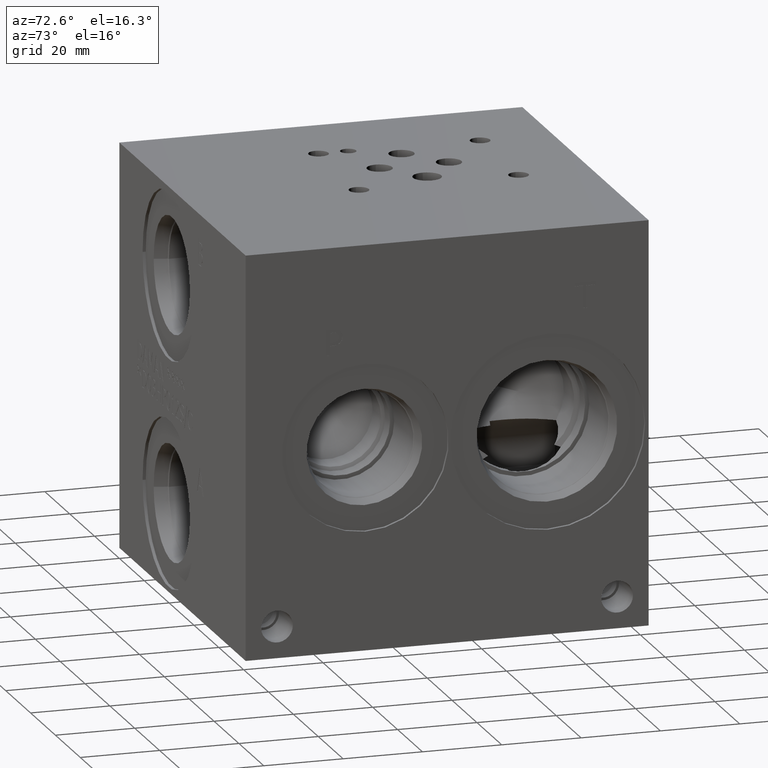
[diagram: clean part render]
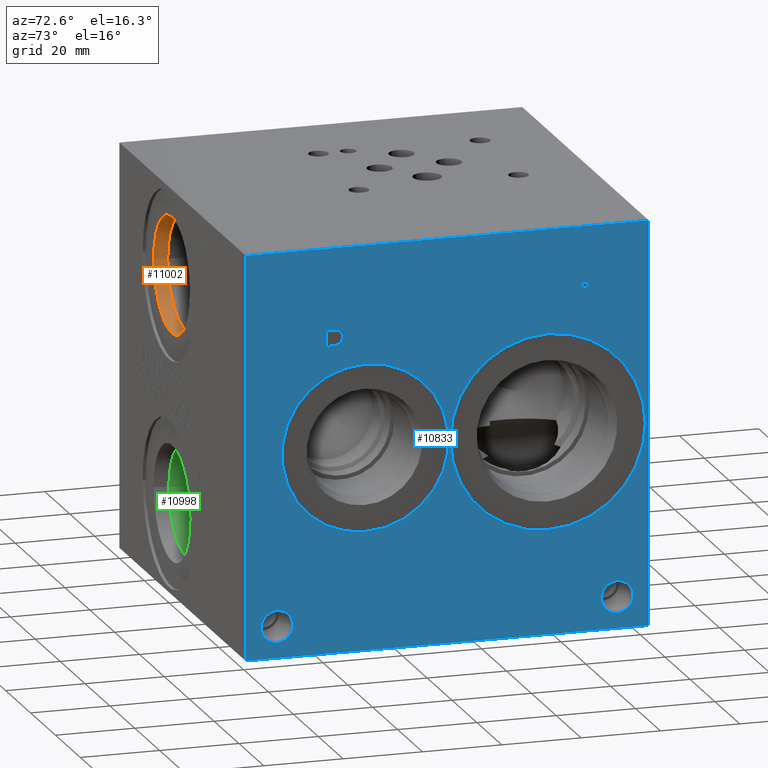
[diagram: same view with three faces highlighted in distinct colors, each labeled with its STEP entity id]
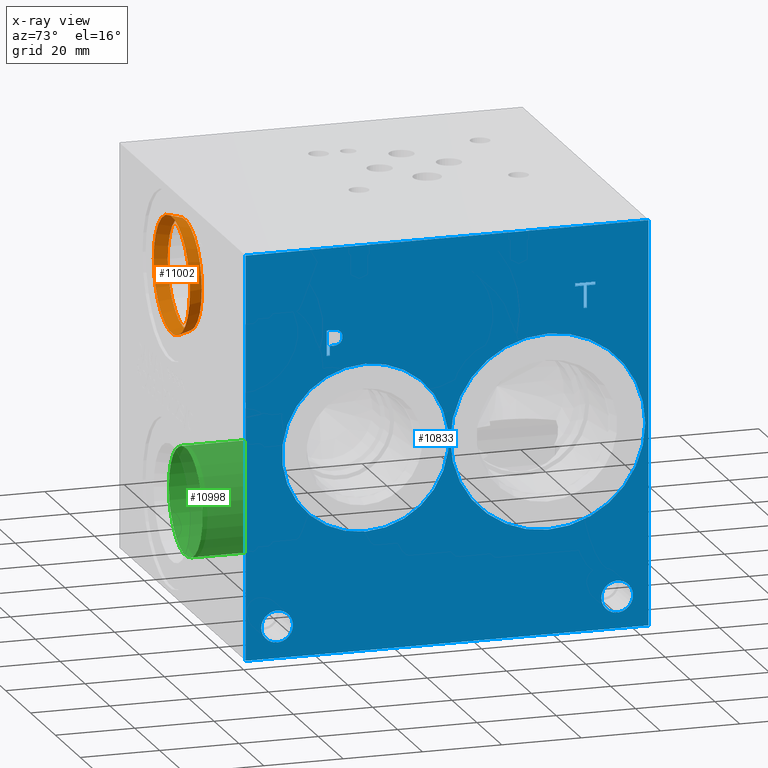
[diagram: x-ray of the same camera — body ghosted, the three highlighted faces saturated]
A machine part, auxiliary view with three faces highlighted in distinct colors.
The next image is the same camera in x-ray (body ghosted, the three faces saturated) — at least one of them is partly hidden behind the body in this view.
Their STEP definitions:

[orange] entity #11002 — the highlighted conical surface has half-angle 15 deg.
#46=CONICAL_SURFACE('',#11606,14.15415,0.261799389532319);
#280=CIRCLE('',#11604,14.5923);
#281=CIRCLE('',#11605,14.5923);
#282=CIRCLE('',#11607,13.716);
#283=CIRCLE('',#11608,13.716);
#1373=FACE_OUTER_BOUND('',#2002,.T.);
#2002=EDGE_LOOP('',(#9534,#9535,#9536,#9537,#9538,#9539));
#3043=LINE('',#18863,#4062);
#4062=VECTOR('',#13799,14.15415);
#5073=VERTEX_POINT('',#18857);
#5074=VERTEX_POINT('',#18858);
#5075=VERTEX_POINT('',#18862);
#5076=VERTEX_POINT('',#18864);
#6585=EDGE_CURVE('',#5073,#5074,#280,.T.);
#6586=EDGE_CURVE('',#5074,#5073,#281,.T.);
#6587=EDGE_CURVE('',#5074,#5075,#3043,.T.);
#6588=EDGE_CURVE('',#5075,#5076,#282,.T.);
#6589=EDGE_CURVE('',#5076,#5075,#283,.T.);
#9534=ORIENTED_EDGE('',*,*,#6585,.F.);
#9535=ORIENTED_EDGE('',*,*,#6586,.F.);
#9536=ORIENTED_EDGE('',*,*,#6587,.T.);
#9537=ORIENTED_EDGE('',*,*,#6588,.T.);
#9538=ORIENTED_EDGE('',*,*,#6589,.T.);
#9539=ORIENTED_EDGE('',*,*,#6587,.F.);
#11002=ADVANCED_FACE('',(#1373),#46,.F.);
#11604=AXIS2_PLACEMENT_3D('',#18859,#13793,#13794);
#11605=AXIS2_PLACEMENT_3D('',#18860,#13795,#13796);
#11606=AXIS2_PLACEMENT_3D('',#18861,#13797,#13798);
#11607=AXIS2_PLACEMENT_3D('',#18865,#13800,#13801);
#11608=AXIS2_PLACEMENT_3D('',#18866,#13802,#13803);
#13793=DIRECTION('center_axis',(0.,1.,0.));
#13794=DIRECTION('ref_axis',(1.,0.,0.));
#13795=DIRECTION('center_axis',(0.,1.,0.));
#13796=DIRECTION('ref_axis',(1.,0.,0.));
#13797=DIRECTION('center_axis',(0.,-1.,0.));
#13798=DIRECTION('ref_axis',(1.,0.,0.));
#13799=DIRECTION('',(0.258819046776634,0.965925825840491,-3.16961917193374E-17));
#13800=DIRECTION('center_axis',(0.,1.,0.));
#13801=DIRECTION('ref_axis',(1.,0.,0.));
#13802=DIRECTION('center_axis',(0.,1.,0.));
#13803=DIRECTION('ref_axis',(1.,0.,0.));
#18857=CARTESIAN_POINT('',(54.2671,0.7874,79.375));
#18858=CARTESIAN_POINT('',(25.0825,0.787399999999999,79.375));
#18859=CARTESIAN_POINT('Origin',(39.6748,0.7874,79.375));
#18860=CARTESIAN_POINT('Origin',(39.6748,0.7874,79.375));
#18861=CARTESIAN_POINT('Origin',(39.6748,2.42259805,79.375));
#18862=CARTESIAN_POINT('',(25.9588,4.0577961,79.375));
#18863=CARTESIAN_POINT('',(25.52065,2.42259805,79.375));
#18864=CARTESIAN_POINT('',(53.3908,4.0577961,79.375));
#18865=CARTESIAN_POINT('Origin',(39.6748,4.0577961,79.375));
#18866=CARTESIAN_POINT('Origin',(39.6748,4.0577961,79.375));

[blue] entity #10833 — the highlighted planar face has unit normal (1, 0, 0).
#118=CIRCLE('',#11296,24.5618);
#119=CIRCLE('',#11297,24.5618);
#120=CIRCLE('',#11298,21.0185);
#121=CIRCLE('',#11299,21.0185);
#122=CIRCLE('',#11300,4.0005);
#123=CIRCLE('',#11301,4.0005);
#124=CIRCLE('',#11302,4.0005);
#125=CIRCLE('',#11303,4.0005);
#367=FACE_BOUND('',#1801,.T.);
#368=FACE_BOUND('',#1802,.T.);
#369=FACE_BOUND('',#1803,.T.);
#370=FACE_BOUND('',#1804,.T.);
#371=FACE_BOUND('',#1805,.T.);
#372=FACE_BOUND('',#1806,.T.);
#650=B_SPLINE_CURVE_WITH_KNOTS('',2,(#17528,#17529,#17530,#17531),
 .UNSPECIFIED.,.F.,.F.,(3,1,3),(0.,1.,2.),.UNSPECIFIED.);
#652=B_SPLINE_CURVE_WITH_KNOTS('',2,(#17549,#17550,#17551,#17552),
 .UNSPECIFIED.,.F.,.F.,(3,1,3),(0.,1.,2.),.UNSPECIFIED.);
#654=B_SPLINE_CURVE_WITH_KNOTS('',2,(#17598,#17599,#17600,#17601),
 .UNSPECIFIED.,.F.,.F.,(3,1,3),(0.,1.,2.),.UNSPECIFIED.);
#656=B_SPLINE_CURVE_WITH_KNOTS('',2,(#17616,#17617,#17618,#17619),
 .UNSPECIFIED.,.F.,.F.,(3,1,3),(0.,1.,2.),.UNSPECIFIED.);
#1204=FACE_OUTER_BOUND('',#1800,.T.);
#1800=EDGE_LOOP('',(#8653,#8654,#8655,#8656));
#1801=EDGE_LOOP('',(#8657,#8658));
#1802=EDGE_LOOP('',(#8659,#8660));
#1803=EDGE_LOOP('',(#8661,#8662));
#1804=EDGE_LOOP('',(#8663,#8664));
#1805=EDGE_LOOP('',(#8665,#8666,#8667,#8668,#8669,#8670,#8671,#8672));
#1806=EDGE_LOOP('',(#8673,#8674,#8675,#8676,#8677,#8678,#8679,#8680,#8681));
#2395=LINE('',#16453,#3414);
#2803=LINE('',#17561,#3822);
#2806=LINE('',#17567,#3825);
#2809=LINE('',#17573,#3828);
#2812=LINE('',#17579,#3831);
#2815=LINE('',#17585,#3834);
#2819=LINE('',#17627,#3838);
#2820=LINE('',#17629,#3839);
#2821=LINE('',#17630,#3840);
#2822=LINE('',#17649,#3841);
#2823=LINE('',#17651,#3842);
#2824=LINE('',#17653,#3843);
#2825=LINE('',#17655,#3844);
#2826=LINE('',#17657,#3845);
#2827=LINE('',#17659,#3846);
#2828=LINE('',#17661,#3847);
#2829=LINE('',#17662,#3848);
#3414=VECTOR('',#12225,10.);
#3822=VECTOR('',#12925,10.);
#3825=VECTOR('',#12930,10.);
#3828=VECTOR('',#12935,10.);
#3831=VECTOR('',#12940,10.);
#3834=VECTOR('',#12945,10.);
#3838=VECTOR('',#12953,10.);
#3839=VECTOR('',#12954,10.);
#3840=VECTOR('',#12955,10.);
#3841=VECTOR('',#12972,10.);
#3842=VECTOR('',#12973,10.);
#3843=VECTOR('',#12974,10.);
#3844=VECTOR('',#12975,10.);
#3845=VECTOR('',#12976,10.);
#3846=VECTOR('',#12977,10.);
#3847=VECTOR('',#12978,10.);
#3848=VECTOR('',#12979,10.);
#4456=VERTEX_POINT('',#16450);
#4457=VERTEX_POINT('',#16452);
#4757=VERTEX_POINT('',#17526);
#4758=VERTEX_POINT('',#17527);
#4761=VERTEX_POINT('',#17548);
#4763=VERTEX_POINT('',#17560);
#4765=VERTEX_POINT('',#17566);
#4767=VERTEX_POINT('',#17572);
#4769=VERTEX_POINT('',#17578);
#4771=VERTEX_POINT('',#17584);
#4773=VERTEX_POINT('',#17597);
#4775=VERTEX_POINT('',#17626);
#4776=VERTEX_POINT('',#17628);
#4777=VERTEX_POINT('',#17631);
#4778=VERTEX_POINT('',#17632);
#4779=VERTEX_POINT('',#17635);
#4780=VERTEX_POINT('',#17636);
#4781=VERTEX_POINT('',#17639);
#4782=VERTEX_POINT('',#17640);
#4783=VERTEX_POINT('',#17643);
#4784=VERTEX_POINT('',#17644);
#4785=VERTEX_POINT('',#17647);
#4786=VERTEX_POINT('',#17648);
#4787=VERTEX_POINT('',#17650);
#4788=VERTEX_POINT('',#17652);
#4789=VERTEX_POINT('',#17654);
#4790=VERTEX_POINT('',#17656);
#4791=VERTEX_POINT('',#17658);
#4792=VERTEX_POINT('',#17660);
#5686=EDGE_CURVE('',#4456,#4457,#2395,.T.);
#6125=EDGE_CURVE('',#4757,#4758,#650,.T.);
#6129=EDGE_CURVE('',#4761,#4757,#652,.T.);
#6132=EDGE_CURVE('',#4763,#4761,#2803,.T.);
#6135=EDGE_CURVE('',#4765,#4763,#2806,.T.);
#6138=EDGE_CURVE('',#4767,#4765,#2809,.T.);
#6141=EDGE_CURVE('',#4769,#4767,#2812,.T.);
#6144=EDGE_CURVE('',#4771,#4769,#2815,.T.);
#6147=EDGE_CURVE('',#4773,#4771,#654,.T.);
#6150=EDGE_CURVE('',#4758,#4773,#656,.T.);
#6152=EDGE_CURVE('',#4456,#4775,#2819,.T.);
#6153=EDGE_CURVE('',#4775,#4776,#2820,.T.);
#6154=EDGE_CURVE('',#4457,#4776,#2821,.T.);
#6155=EDGE_CURVE('',#4777,#4778,#118,.T.);
#6156=EDGE_CURVE('',#4778,#4777,#119,.T.);
#6157=EDGE_CURVE('',#4779,#4780,#120,.T.);
#6158=EDGE_CURVE('',#4780,#4779,#121,.T.);
#6159=EDGE_CURVE('',#4781,#4782,#122,.T.);
#6160=EDGE_CURVE('',#4782,#4781,#123,.T.);
#6161=EDGE_CURVE('',#4783,#4784,#124,.T.);
#6162=EDGE_CURVE('',#4784,#4783,#125,.T.);
#6163=EDGE_CURVE('',#4785,#4786,#2822,.T.);
#6164=EDGE_CURVE('',#4786,#4787,#2823,.T.);
#6165=EDGE_CURVE('',#4787,#4788,#2824,.T.);
#6166=EDGE_CURVE('',#4788,#4789,#2825,.T.);
#6167=EDGE_CURVE('',#4789,#4790,#2826,.T.);
#6168=EDGE_CURVE('',#4790,#4791,#2827,.T.);
#6169=EDGE_CURVE('',#4791,#4792,#2828,.T.);
#6170=EDGE_CURVE('',#4792,#4785,#2829,.T.);
#8653=ORIENTED_EDGE('',*,*,#6152,.T.);
#8654=ORIENTED_EDGE('',*,*,#6153,.T.);
#8655=ORIENTED_EDGE('',*,*,#6154,.F.);
#8656=ORIENTED_EDGE('',*,*,#5686,.F.);
#8657=ORIENTED_EDGE('',*,*,#6155,.T.);
#8658=ORIENTED_EDGE('',*,*,#6156,.T.);
#8659=ORIENTED_EDGE('',*,*,#6157,.T.);
#8660=ORIENTED_EDGE('',*,*,#6158,.T.);
#8661=ORIENTED_EDGE('',*,*,#6159,.T.);
#8662=ORIENTED_EDGE('',*,*,#6160,.T.);
#8663=ORIENTED_EDGE('',*,*,#6161,.T.);
#8664=ORIENTED_EDGE('',*,*,#6162,.T.);
#8665=ORIENTED_EDGE('',*,*,#6163,.T.);
#8666=ORIENTED_EDGE('',*,*,#6164,.T.);
#8667=ORIENTED_EDGE('',*,*,#6165,.T.);
#8668=ORIENTED_EDGE('',*,*,#6166,.T.);
#8669=ORIENTED_EDGE('',*,*,#6167,.T.);
#8670=ORIENTED_EDGE('',*,*,#6168,.T.);
#8671=ORIENTED_EDGE('',*,*,#6169,.T.);
#8672=ORIENTED_EDGE('',*,*,#6170,.T.);
#8673=ORIENTED_EDGE('',*,*,#6125,.T.);
#8674=ORIENTED_EDGE('',*,*,#6150,.T.);
#8675=ORIENTED_EDGE('',*,*,#6147,.T.);
#8676=ORIENTED_EDGE('',*,*,#6144,.T.);
#8677=ORIENTED_EDGE('',*,*,#6141,.T.);
#8678=ORIENTED_EDGE('',*,*,#6138,.T.);
#8679=ORIENTED_EDGE('',*,*,#6135,.T.);
#8680=ORIENTED_EDGE('',*,*,#6132,.T.);
#8681=ORIENTED_EDGE('',*,*,#6129,.T.);
#9966=PLANE('',#11295);
#10833=ADVANCED_FACE('',(#1204,#367,#368,#369,#370,#371,#372),#9966,.T.);
#11295=AXIS2_PLACEMENT_3D('',#17625,#12951,#12952);
#11296=AXIS2_PLACEMENT_3D('',#17633,#12956,#12957);
#11297=AXIS2_PLACEMENT_3D('',#17634,#12958,#12959);
#11298=AXIS2_PLACEMENT_3D('',#17637,#12960,#12961);
#11299=AXIS2_PLACEMENT_3D('',#17638,#12962,#12963);
#11300=AXIS2_PLACEMENT_3D('',#17641,#12964,#12965);
#11301=AXIS2_PLACEMENT_3D('',#17642,#12966,#12967);
#11302=AXIS2_PLACEMENT_3D('',#17645,#12968,#12969);
#11303=AXIS2_PLACEMENT_3D('',#17646,#12970,#12971);
#12225=DIRECTION('',(0.,0.,1.));
#12925=DIRECTION('',(0.,1.,0.));
#12930=DIRECTION('',(0.,0.,1.));
#12935=DIRECTION('',(0.,-1.,0.));
#12940=DIRECTION('',(0.,0.,-1.));
#12945=DIRECTION('',(0.,-1.,0.));
#12951=DIRECTION('center_axis',(1.,0.,0.));
#12952=DIRECTION('ref_axis',(0.,1.,0.));
#12953=DIRECTION('',(0.,1.,0.));
#12954=DIRECTION('',(0.,0.,1.));
#12955=DIRECTION('',(0.,1.,0.));
#12956=DIRECTION('center_axis',(-1.,0.,0.));
#12957=DIRECTION('ref_axis',(0.,0.,-1.));
#12958=DIRECTION('center_axis',(-1.,0.,0.));
#12959=DIRECTION('ref_axis',(0.,0.,-1.));
#12960=DIRECTION('center_axis',(-1.,0.,0.));
#12961=DIRECTION('ref_axis',(0.,0.,-1.));
#12962=DIRECTION('center_axis',(-1.,0.,0.));
#12963=DIRECTION('ref_axis',(0.,0.,-1.));
#12964=DIRECTION('center_axis',(-1.,0.,0.));
#12965=DIRECTION('ref_axis',(0.,1.,0.));
#12966=DIRECTION('center_axis',(-1.,0.,0.));
#12967=DIRECTION('ref_axis',(0.,1.,0.));
#12968=DIRECTION('center_axis',(-1.,0.,0.));
#12969=DIRECTION('ref_axis',(0.,1.,0.));
#12970=DIRECTION('center_axis',(-1.,0.,0.));
#12971=DIRECTION('ref_axis',(0.,1.,0.));
#12972=DIRECTION('',(0.,-1.,0.));
#12973=DIRECTION('',(0.,0.,1.));
#12974=DIRECTION('',(0.,-1.,0.));
#12975=DIRECTION('',(0.,0.,1.));
#12976=DIRECTION('',(0.,1.,0.));
#12977=DIRECTION('',(0.,0.,-1.));
#12978=DIRECTION('',(0.,-1.,0.));
#12979=DIRECTION('',(0.,0.,-1.));
#16450=CARTESIAN_POINT('',(101.6,0.,0.));
#16452=CARTESIAN_POINT('',(101.6,0.,101.6));
#16453=CARTESIAN_POINT('',(101.6,0.,0.));
#17526=CARTESIAN_POINT('',(101.6,23.6617672023594,80.6297681439707));
#17527=CARTESIAN_POINT('',(101.6,24.418209654532,79.111737372604));
#17528=CARTESIAN_POINT('Ctrl Pts',(101.6,23.6617672023594,80.6297681439707));
#17529=CARTESIAN_POINT('Ctrl Pts',(101.6,24.0168320268486,80.3879123939564));
#17530=CARTESIAN_POINT('Ctrl Pts',(101.6,24.418209654532,79.6417616758269));
#17531=CARTESIAN_POINT('Ctrl Pts',(101.6,24.418209654532,79.111737372604));
#17548=CARTESIAN_POINT('',(101.6,21.9996521543883,81.0259999046326));
#17549=CARTESIAN_POINT('Ctrl Pts',(101.6,21.9996521543883,81.0259999046326));
#17550=CARTESIAN_POINT('Ctrl Pts',(101.6,22.5656975267624,81.0259999046326));
#17551=CARTESIAN_POINT('Ctrl Pts',(101.6,23.358161048086,80.8407486918556));
#17552=CARTESIAN_POINT('Ctrl Pts',(101.6,23.6617672023594,80.6297681439707));
#17560=CARTESIAN_POINT('',(101.6,20.4044333776978,81.0259999046326));
#17561=CARTESIAN_POINT('',(101.6,10.2022166888489,81.0259999046326));
#17566=CARTESIAN_POINT('',(101.6,20.4044333776978,74.676));
#17567=CARTESIAN_POINT('',(101.6,20.4044333776978,37.338));
#17572=CARTESIAN_POINT('',(101.6,21.2483555692373,74.676));
#17573=CARTESIAN_POINT('',(101.6,10.6241777846186,74.676));
#17578=CARTESIAN_POINT('',(101.6,21.2483555692373,77.0430988299279));
#17579=CARTESIAN_POINT('',(101.6,21.2483555692373,38.5215494149639));
#17584=CARTESIAN_POINT('',(101.6,21.9636310852372,77.0430988299279));
#17585=CARTESIAN_POINT('',(101.6,10.9818155426186,77.0430988299279));
#17597=CARTESIAN_POINT('',(101.6,23.8624560162011,77.7017698086904));
#17598=CARTESIAN_POINT('Ctrl Pts',(101.6,23.8624560162011,77.7017698086904));
#17599=CARTESIAN_POINT('Ctrl Pts',(101.6,23.5331205268198,77.3775801863307));
#17600=CARTESIAN_POINT('Ctrl Pts',(101.6,22.6428855320861,77.0430988299279));
#17601=CARTESIAN_POINT('Ctrl Pts',(101.6,21.9636310852372,77.0430988299279));
#17616=CARTESIAN_POINT('Ctrl Pts',(101.6,24.418209654532,79.111737372604));
#17617=CARTESIAN_POINT('Ctrl Pts',(101.6,24.418209654532,78.7000680108774));
#17618=CARTESIAN_POINT('Ctrl Pts',(101.6,24.1248952343018,77.9590631597695));
#17619=CARTESIAN_POINT('Ctrl Pts',(101.6,23.8624560162011,77.7017698086904));
#17625=CARTESIAN_POINT('Origin',(101.6,0.,0.));
#17626=CARTESIAN_POINT('',(101.6,101.6,0.));
#17627=CARTESIAN_POINT('',(101.6,0.,0.));
#17628=CARTESIAN_POINT('',(101.6,101.6,101.6));
#17629=CARTESIAN_POINT('',(101.6,101.6,0.));
#17630=CARTESIAN_POINT('',(101.6,0.,101.6));
#17631=CARTESIAN_POINT('',(101.6,76.2,26.2382));
#17632=CARTESIAN_POINT('',(101.6,76.2,75.3618));
#17633=CARTESIAN_POINT('Origin',(101.6,76.2,50.8));
#17634=CARTESIAN_POINT('Origin',(101.6,76.2,50.8));
#17635=CARTESIAN_POINT('',(101.6,30.1752,29.7815));
#17636=CARTESIAN_POINT('',(101.6,30.1752,71.8185));
#17637=CARTESIAN_POINT('Origin',(101.6,30.1752,50.8));
#17638=CARTESIAN_POINT('Origin',(101.6,30.1752,50.8));
#17639=CARTESIAN_POINT('',(101.6,97.6757,7.9248));
#17640=CARTESIAN_POINT('',(101.6,89.6747,7.9248));
#17641=CARTESIAN_POINT('Origin',(101.6,93.6752,7.9248));
#17642=CARTESIAN_POINT('Origin',(101.6,93.6752,7.9248));
#17643=CARTESIAN_POINT('',(101.6,11.9253,7.9248));
#17644=CARTESIAN_POINT('',(101.6,3.9243,7.9248));
#17645=CARTESIAN_POINT('Origin',(101.6,7.9248,7.9248));
#17646=CARTESIAN_POINT('Origin',(101.6,7.9248,7.9248));
#17647=CARTESIAN_POINT('',(101.6,86.027165271453,81.026));
#17648=CARTESIAN_POINT('',(101.6,85.1832430799135,81.026));
#17649=CARTESIAN_POINT('',(101.6,43.0135826357265,81.026));
#17650=CARTESIAN_POINT('',(101.6,85.1832430799135,86.6247033194816));
#17651=CARTESIAN_POINT('',(101.6,85.1832430799135,40.513));
#17652=CARTESIAN_POINT('',(101.6,83.0528541329784,86.6247033194816));
#17653=CARTESIAN_POINT('',(101.6,42.5916215399568,86.6247033194816));
#17654=CARTESIAN_POINT('',(101.6,83.0528541329784,87.3759999046326));
#17655=CARTESIAN_POINT('',(101.6,83.0528541329784,43.3123516597408));
#17656=CARTESIAN_POINT('',(101.6,88.1575542183881,87.3759999046326));
#17657=CARTESIAN_POINT('',(101.6,41.5264270664892,87.3759999046326));
#17658=CARTESIAN_POINT('',(101.6,88.1575542183881,86.6247033194816));
#17659=CARTESIAN_POINT('',(101.6,88.1575542183881,43.6879999523163));
#17660=CARTESIAN_POINT('',(101.6,86.027165271453,86.6247033194816));
#17661=CARTESIAN_POINT('',(101.6,44.078777109194,86.6247033194816));
#17662=CARTESIAN_POINT('',(101.6,86.027165271453,43.3123516597408));

[green] entity #10998 — the highlighted cylindrical surface (bore or boss wall) has radius 13.495 mm, axis along (0, -1, 0).
#97=CYLINDRICAL_SURFACE('',#11598,13.495);
#260=CIRCLE('',#11570,13.495);
#275=CIRCLE('',#11595,13.495);
#276=CIRCLE('',#11596,13.495);
#1369=FACE_OUTER_BOUND('',#1997,.T.);
#1997=EDGE_LOOP('',(#9514,#9515,#9516,#9517,#9518));
#3040=LINE('',#18847,#4059);
#4059=VECTOR('',#13780,13.495);
#5051=VERTEX_POINT('',#18789);
#5068=VERTEX_POINT('',#18840);
#5069=VERTEX_POINT('',#18841);
#6554=EDGE_CURVE('',#5051,#5051,#260,.T.);
#6577=EDGE_CURVE('',#5068,#5069,#275,.T.);
#6578=EDGE_CURVE('',#5069,#5068,#276,.T.);
#6580=EDGE_CURVE('',#5051,#5069,#3040,.T.);
#9514=ORIENTED_EDGE('',*,*,#6554,.T.);
#9515=ORIENTED_EDGE('',*,*,#6580,.T.);
#9516=ORIENTED_EDGE('',*,*,#6577,.F.);
#9517=ORIENTED_EDGE('',*,*,#6578,.F.);
#9518=ORIENTED_EDGE('',*,*,#6580,.F.);
#10998=ADVANCED_FACE('',(#1369),#97,.F.);
#11570=AXIS2_PLACEMENT_3D('',#18791,#13714,#13715);
#11595=AXIS2_PLACEMENT_3D('',#18842,#13772,#13773);
#11596=AXIS2_PLACEMENT_3D('',#18843,#13774,#13775);
#11598=AXIS2_PLACEMENT_3D('',#18846,#13778,#13779);
#13714=DIRECTION('center_axis',(0.,-1.,0.));
#13715=DIRECTION('ref_axis',(1.,0.,0.));
#13772=DIRECTION('center_axis',(0.,-1.,0.));
#13773=DIRECTION('ref_axis',(1.,0.,0.));
#13774=DIRECTION('center_axis',(0.,-1.,0.));
#13775=DIRECTION('ref_axis',(1.,0.,0.));
#13778=DIRECTION('center_axis',(0.,-1.,0.));
#13779=DIRECTION('ref_axis',(1.,0.,0.));
#13780=DIRECTION('',(0.,1.,0.));
#18789=CARTESIAN_POINT('',(26.1798,4.285,22.225));
#18791=CARTESIAN_POINT('Origin',(39.6748,4.285,22.225));
#18840=CARTESIAN_POINT('',(53.1698,19.8374,22.225));
#18841=CARTESIAN_POINT('',(26.1798,19.8374,22.225));
#18842=CARTESIAN_POINT('Origin',(39.6748,19.8374,22.225));
#18843=CARTESIAN_POINT('Origin',(39.6748,19.8374,22.225));
#18846=CARTESIAN_POINT('Origin',(39.6748,9.9187,22.225));
#18847=CARTESIAN_POINT('',(26.1798,9.9187,22.225));